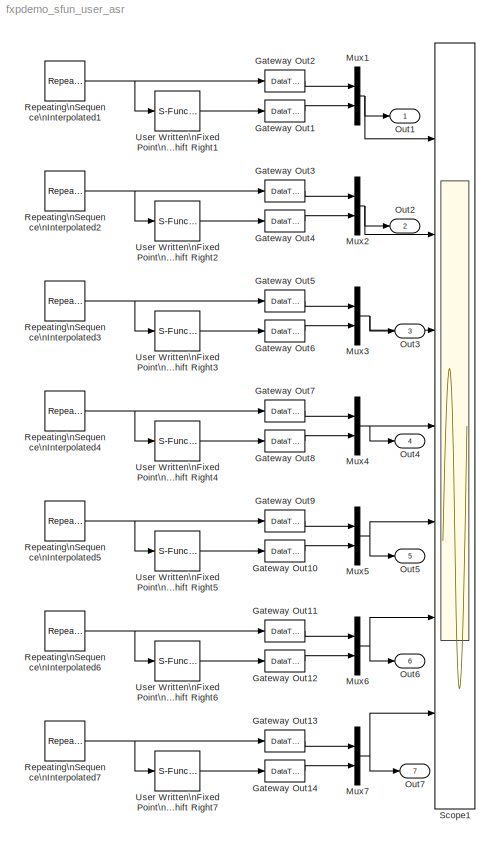
MODEL fxpdemo_sfun_user_asr
KIND model
CONFIG AbsTol = auto
CONFIG FixedStep = 0.001
CONFIG MaxStep = auto
CONFIG MinStep = auto
CONFIG RelTol = 1e-3
CONFIG Solver = FixedStepDiscrete
CONFIG SolverMode = Auto
CONFIG StartTime = 0.0
CONFIG StopTime = 1
BLOCK [DataTypeConversion] Gateway Out1
  DataType = double
  SaturateOnIntegerOverflow = off
BLOCK [DataTypeConversion] Gateway Out10
  DataType = double
  SaturateOnIntegerOverflow = off
BLOCK [DataTypeConversion] Gateway Out11
  DataType = double
  SaturateOnIntegerOverflow = off
BLOCK [DataTypeConversion] Gateway Out12
  DataType = double
  SaturateOnIntegerOverflow = off
BLOCK [DataTypeConversion] Gateway Out13
  DataType = double
  SaturateOnIntegerOverflow = off
BLOCK [DataTypeConversion] Gateway Out14
  DataType = double
  SaturateOnIntegerOverflow = off
BLOCK [DataTypeConversion] Gateway Out2
  DataType = double
  SaturateOnIntegerOverflow = off
BLOCK [DataTypeConversion] Gateway Out3
  DataType = double
  SaturateOnIntegerOverflow = off
BLOCK [DataTypeConversion] Gateway Out4
  DataType = double
  SaturateOnIntegerOverflow = off
BLOCK [DataTypeConversion] Gateway Out5
  DataType = double
  SaturateOnIntegerOverflow = off
BLOCK [DataTypeConversion] Gateway Out6
  DataType = double
  SaturateOnIntegerOverflow = off
BLOCK [DataTypeConversion] Gateway Out7
  DataType = double
  SaturateOnIntegerOverflow = off
BLOCK [DataTypeConversion] Gateway Out8
  DataType = double
  SaturateOnIntegerOverflow = off
BLOCK [DataTypeConversion] Gateway Out9
  DataType = double
  SaturateOnIntegerOverflow = off
BLOCK [Mux] Mux1
  DisplayOption = bar
  Inputs = 2
  Ports = [2, 1]
BLOCK [Mux] Mux2
  DisplayOption = bar
  Inputs = 2
  Ports = [2, 1]
BLOCK [Mux] Mux3
  DisplayOption = bar
  Inputs = 2
  Ports = [2, 1]
BLOCK [Mux] Mux4
  DisplayOption = bar
  Inputs = 2
  Ports = [2, 1]
BLOCK [Mux] Mux5
  DisplayOption = bar
  Inputs = 2
  Ports = [2, 1]
BLOCK [Mux] Mux6
  DisplayOption = bar
  Inputs = 2
  Ports = [2, 1]
BLOCK [Mux] Mux7
  DisplayOption = bar
  Inputs = 2
  Ports = [2, 1]
BLOCK [Outport] Out1
BLOCK [Outport] Out2
  Port = 2
BLOCK [Outport] Out3
  Port = 3
BLOCK [Outport] Out4
  Port = 4
BLOCK [Outport] Out5
  Port = 5
BLOCK [Outport] Out6
  Port = 6
BLOCK [Outport] Out7
  Port = 7
BLOCK [Reference] Repeating\nSequence\nInterpolated1  REF=fixpt_lib_4/Sources/Repeating\nSequence\nInterpolated  (lib defined in mdl_ef9dacb0d1df)
  LockScale = off
  LookUpMeth = Interpolation-Use End Values
  OutDataType = ufix(8)
  OutScaling = 2^-7
  OutValues = 0+2*[0 0.25 0.5 0.75 1].'
  OutputDataTypeScalingMode = Specify via dialog
  Ports = [0, 1]
  SourceBlock = fixpt_lib_4/Sources/Repeating\nSequence\nInterpolated
  SourceType = Fixed-Point Repeating Sequence Interpolated
  TimeValues = [0 0.25 0.5 0.75 1].'
  tsamp = 0.001
BLOCK [Reference] Repeating\nSequence\nInterpolated2  REF=fixpt_lib_4/Sources/Repeating\nSequence\nInterpolated  (lib defined in mdl_ef9dacb0d1df)
  LockScale = off
  LookUpMeth = Interpolation-Use End Values
  OutDataType = sfix(8)
  OutScaling = 2^-6
  OutValues = -2+4*[0 0.25 0.5 0.75 1].'
  OutputDataTypeScalingMode = Specify via dialog
  Ports = [0, 1]
  SourceBlock = fixpt_lib_4/Sources/Repeating\nSequence\nInterpolated
  SourceType = Fixed-Point Repeating Sequence Interpolated
  TimeValues = [0 0.25 0.5 0.75 1].'
  tsamp = 0.001
BLOCK [Reference] Repeating\nSequence\nInterpolated3  REF=fixpt_lib_4/Sources/Repeating\nSequence\nInterpolated  (lib defined in mdl_ef9dacb0d1df)
  LockScale = off
  LookUpMeth = Interpolation-Use End Values
  OutDataType = ufix(16)
  OutScaling = 2^-15
  OutValues = 0+2*[0 0.25 0.5 0.75 1].'
  OutputDataTypeScalingMode = Specify via dialog
  Ports = [0, 1]
  SourceBlock = fixpt_lib_4/Sources/Repeating\nSequence\nInterpolated
  SourceType = Fixed-Point Repeating Sequence Interpolated
  TimeValues = [0 0.25 0.5 0.75 1].'
  tsamp = 0.001
BLOCK [Reference] Repeating\nSequence\nInterpolated4  REF=fixpt_lib_4/Sources/Repeating\nSequence\nInterpolated  (lib defined in mdl_ef9dacb0d1df)
  LockScale = off
  LookUpMeth = Interpolation-Use End Values
  OutDataType = sfix(16)
  OutScaling = 2^-14
  OutValues = -2+4*[0 0.25 0.5 0.75 1].'
  OutputDataTypeScalingMode = Specify via dialog
  Ports = [0, 1]
  SourceBlock = fixpt_lib_4/Sources/Repeating\nSequence\nInterpolated
  SourceType = Fixed-Point Repeating Sequence Interpolated
  TimeValues = [0 0.25 0.5 0.75 1].'
  tsamp = 0.001
BLOCK [Reference] Repeating\nSequence\nInterpolated5  REF=fixpt_lib_4/Sources/Repeating\nSequence\nInterpolated  (lib defined in mdl_ef9dacb0d1df)
  LockScale = off
  LookUpMeth = Interpolation-Use End Values
  OutDataType = ufix(32)
  OutScaling = 2^-31
  OutValues = 0+2*[0 0.25 0.5 0.75 1].'
  OutputDataTypeScalingMode = Specify via dialog
  Ports = [0, 1]
  SourceBlock = fixpt_lib_4/Sources/Repeating\nSequence\nInterpolated
  SourceType = Fixed-Point Repeating Sequence Interpolated
  TimeValues = [0 0.25 0.5 0.75 1].'
  tsamp = 0.001
BLOCK [Reference] Repeating\nSequence\nInterpolated6  REF=fixpt_lib_4/Sources/Repeating\nSequence\nInterpolated  (lib defined in mdl_ef9dacb0d1df)
  LockScale = off
  LookUpMeth = Interpolation-Use End Values
  OutDataType = sfix(32)
  OutScaling = 2^-30
  OutValues = -2+4*[0 0.25 0.5 0.75 1].'
  OutputDataTypeScalingMode = Specify via dialog
  Ports = [0, 1]
  SourceBlock = fixpt_lib_4/Sources/Repeating\nSequence\nInterpolated
  SourceType = Fixed-Point Repeating Sequence Interpolated
  TimeValues = [0 0.25 0.5 0.75 1].'
  tsamp = 0.001
BLOCK [Reference] Repeating\nSequence\nInterpolated7  REF=fixpt_lib_4/Sources/Repeating\nSequence\nInterpolated  (lib defined in mdl_ef9dacb0d1df)
  LockScale = off
  LookUpMeth = Interpolation-Use End Values
  OutDataType = sfix(12)
  OutScaling = 2^-10
  OutValues = -2+4*[0 0.25 0.5 0.75 1].'
  OutputDataTypeScalingMode = Specify via dialog
  Ports = [0, 1]
  SourceBlock = fixpt_lib_4/Sources/Repeating\nSequence\nInterpolated
  SourceType = Fixed-Point Repeating Sequence Interpolated
  TimeValues = [0 0.25 0.5 0.75 1].'
  tsamp = 0.001
BLOCK [Scope] Scope1
  DataFormat = StructureWithTime
  LimitDataPoints = off
  NumInputPorts = 7
  Ports = [7]
  SaveName = ScopeData1
  TimeRange = 1
  YMax = 2~2~2~2~2~2~2
  YMin = 0~-2~0~-2~0~-2~-2
BLOCK [S-Function] User Written\nFixed Point\nArithmetic Shift Right1
  FunctionName = sfun_user_fxp_asr
  MaskDescription = Arithmetic Shift Right
  MaskDisplay = disp(sprintf('ASR %d',numBitsShiftRight))
  MaskEnableString = on
  MaskIconFrame = on
  MaskIconOpaque = on
  MaskIconRotate = none
  MaskIconUnits = normalized
  MaskPromptString = Number of Bits to Shift Right Bits and Binary Point
  MaskSelfModifiable = on
  MaskStyleString = edit
  MaskToolTipString = on
  MaskTunableValueString = on
  MaskType = User ASR
  MaskValueString = 6
  MaskVariables = numBitsShiftRight=@1;
  MaskVisibilityString = on
  Parameters = numBitsShiftRight
  Ports = [1, 1]
BLOCK [S-Function] User Written\nFixed Point\nArithmetic Shift Right2
  FunctionName = sfun_user_fxp_asr
  MaskDescription = Arithmetic Shift Right
  MaskDisplay = disp(sprintf('ASR %d',numBitsShiftRight))
  MaskEnableString = on
  MaskIconFrame = on
  MaskIconOpaque = on
  MaskIconRotate = none
  MaskIconUnits = normalized
  MaskPromptString = Number of Bits to Shift Right Bits and Binary Point
  MaskSelfModifiable = on
  MaskStyleString = edit
  MaskToolTipString = on
  MaskTunableValueString = on
  MaskType = User ASR
  MaskValueString = 5
  MaskVariables = numBitsShiftRight=@1;
  MaskVisibilityString = on
  Parameters = numBitsShiftRight
  Ports = [1, 1]
BLOCK [S-Function] User Written\nFixed Point\nArithmetic Shift Right3
  FunctionName = sfun_user_fxp_asr
  MaskDescription = Arithmetic Shift Right
  MaskDisplay = disp(sprintf('ASR %d',numBitsShiftRight))
  MaskEnableString = on
  MaskIconFrame = on
  MaskIconOpaque = on
  MaskIconRotate = none
  MaskIconUnits = normalized
  MaskPromptString = Number of Bits to Shift Right Bits and Binary Point
  MaskSelfModifiable = on
  MaskStyleString = edit
  MaskToolTipString = on
  MaskTunableValueString = on
  MaskType = User ASR
  MaskValueString = 14
  MaskVariables = numBitsShiftRight=@1;
  MaskVisibilityString = on
  Parameters = numBitsShiftRight
  Ports = [1, 1]
BLOCK [S-Function] User Written\nFixed Point\nArithmetic Shift Right4
  FunctionName = sfun_user_fxp_asr
  MaskDescription = Arithmetic Shift Right
  MaskDisplay = disp(sprintf('ASR %d',numBitsShiftRight))
  MaskEnableString = on
  MaskIconFrame = on
  MaskIconOpaque = on
  MaskIconRotate = none
  MaskIconUnits = normalized
  MaskPromptString = Number of Bits to Shift Right Bits and Binary Point
  MaskSelfModifiable = on
  MaskStyleString = edit
  MaskToolTipString = on
  MaskTunableValueString = on
  MaskType = User ASR
  MaskValueString = 13
  MaskVariables = numBitsShiftRight=@1;
  MaskVisibilityString = on
  Parameters = numBitsShiftRight
  Ports = [1, 1]
BLOCK [S-Function] User Written\nFixed Point\nArithmetic Shift Right5
  FunctionName = sfun_user_fxp_asr
  MaskDescription = Arithmetic Shift Right
  MaskDisplay = disp(sprintf('ASR %d',numBitsShiftRight))
  MaskEnableString = on
  MaskIconFrame = on
  MaskIconOpaque = on
  MaskIconRotate = none
  MaskIconUnits = normalized
  MaskPromptString = Number of Bits to Shift Right Bits and Binary Point
  MaskSelfModifiable = on
  MaskStyleString = edit
  MaskToolTipString = on
  MaskTunableValueString = on
  MaskType = User ASR
  MaskValueString = 30
  MaskVariables = numBitsShiftRight=@1;
  MaskVisibilityString = on
  Parameters = numBitsShiftRight
  Ports = [1, 1]
BLOCK [S-Function] User Written\nFixed Point\nArithmetic Shift Right6
  FunctionName = sfun_user_fxp_asr
  MaskDescription = Arithmetic Shift Right
  MaskDisplay = disp(sprintf('ASR %d',numBitsShiftRight))
  MaskEnableString = on
  MaskIconFrame = on
  MaskIconOpaque = on
  MaskIconRotate = none
  MaskIconUnits = normalized
  MaskPromptString = Number of Bits to Shift Right Bits and Binary Point
  MaskSelfModifiable = on
  MaskStyleString = edit
  MaskToolTipString = on
  MaskTunableValueString = on
  MaskType = User ASR
  MaskValueString = 29
  MaskVariables = numBitsShiftRight=@1;
  MaskVisibilityString = on
  Parameters = numBitsShiftRight
  Ports = [1, 1]
BLOCK [S-Function] User Written\nFixed Point\nArithmetic Shift Right7
  FunctionName = sfun_user_fxp_asr
  MaskDescription = Arithmetic Shift Right
  MaskDisplay = disp(sprintf('ASR %d',numBitsShiftRight))
  MaskEnableString = on
  MaskIconFrame = on
  MaskIconOpaque = on
  MaskIconRotate = none
  MaskIconUnits = normalized
  MaskPromptString = Number of Bits to Shift Right Bits and Binary Point
  MaskSelfModifiable = on
  MaskStyleString = edit
  MaskToolTipString = on
  MaskTunableValueString = on
  MaskType = User ASR
  MaskValueString = 8
  MaskVariables = numBitsShiftRight=@1;
  MaskVisibilityString = on
  Parameters = numBitsShiftRight
  Ports = [1, 1]
LINE Gateway Out10:1 -> Mux5:2
LINE Gateway Out11:1 -> Mux6:1
LINE Gateway Out12:1 -> Mux6:2
LINE Gateway Out13:1 -> Mux7:1
LINE Gateway Out14:1 -> Mux7:2
LINE Gateway Out1:1 -> Mux1:2
LINE Gateway Out2:1 -> Mux1:1
LINE Gateway Out3:1 -> Mux2:1
LINE Gateway Out4:1 -> Mux2:2
LINE Gateway Out5:1 -> Mux3:1
LINE Gateway Out6:1 -> Mux3:2
LINE Gateway Out7:1 -> Mux4:1
LINE Gateway Out8:1 -> Mux4:2
LINE Gateway Out9:1 -> Mux5:1
NET Mux1:1 -> Out1:1, Scope1:1
NET Mux2:1 -> Out2:1, Scope1:2
NET Mux3:1 -> Out3:1, Scope1:3
NET Mux4:1 -> Out4:1, Scope1:4
NET Mux5:1 -> Out5:1, Scope1:5
NET Mux6:1 -> Out6:1, Scope1:6
NET Mux7:1 -> Out7:1, Scope1:7
NET Repeating\nSequence\nInterpolated1:1 -> Gateway Out2:1, User Written\nFixed Point\nArithmetic Shift Right1:1
NET Repeating\nSequence\nInterpolated2:1 -> Gateway Out3:1, User Written\nFixed Point\nArithmetic Shift Right2:1
NET Repeating\nSequence\nInterpolated3:1 -> Gateway Out5:1, User Written\nFixed Point\nArithmetic Shift Right3:1
NET Repeating\nSequence\nInterpolated4:1 -> Gateway Out7:1, User Written\nFixed Point\nArithmetic Shift Right4:1
NET Repeating\nSequence\nInterpolated5:1 -> Gateway Out9:1, User Written\nFixed Point\nArithmetic Shift Right5:1
NET Repeating\nSequence\nInterpolated6:1 -> Gateway Out11:1, User Written\nFixed Point\nArithmetic Shift Right6:1
NET Repeating\nSequence\nInterpolated7:1 -> Gateway Out13:1, User Written\nFixed Point\nArithmetic Shift Right7:1
LINE User Written\nFixed Point\nArithmetic Shift Right1:1 -> Gateway Out1:1
LINE User Written\nFixed Point\nArithmetic Shift Right2:1 -> Gateway Out4:1
LINE User Written\nFixed Point\nArithmetic Shift Right3:1 -> Gateway Out6:1
LINE User Written\nFixed Point\nArithmetic Shift Right4:1 -> Gateway Out8:1
LINE User Written\nFixed Point\nArithmetic Shift Right5:1 -> Gateway Out10:1
LINE User Written\nFixed Point\nArithmetic Shift Right6:1 -> Gateway Out12:1
LINE User Written\nFixed Point\nArithmetic Shift Right7:1 -> Gateway Out14:1
note: NET lines group one-source signal fan-out (src -> all destinations, sorted); 1:1 wires keep LINE
